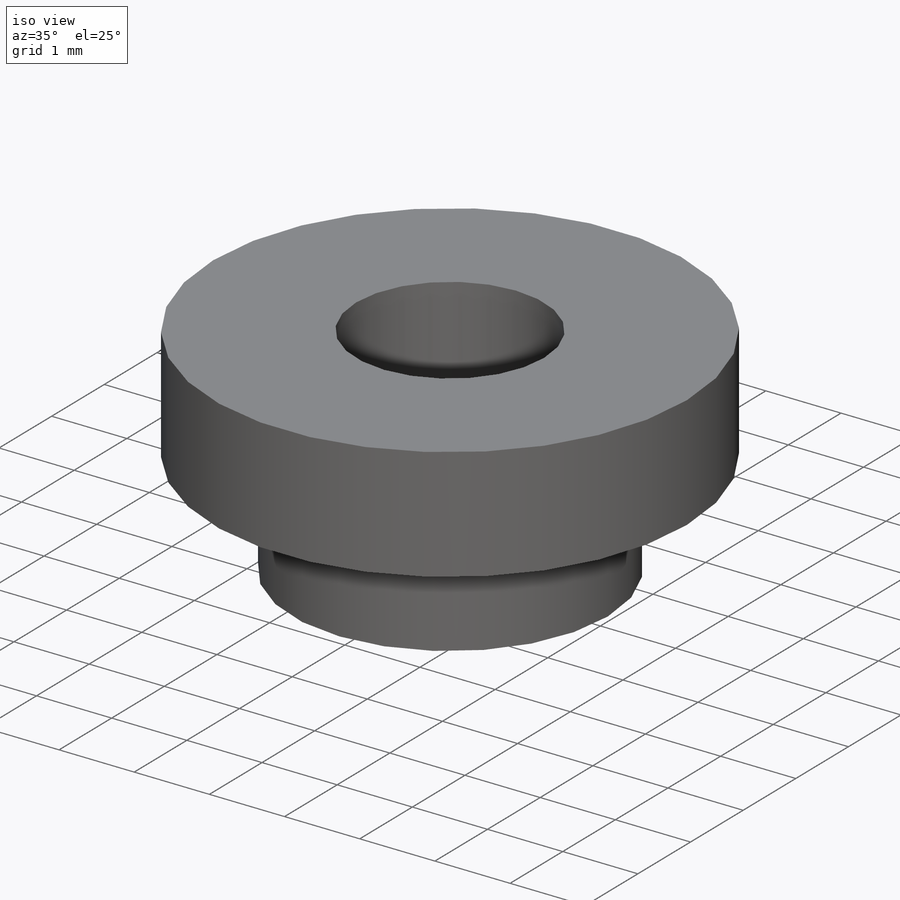
[diagram: iso view]
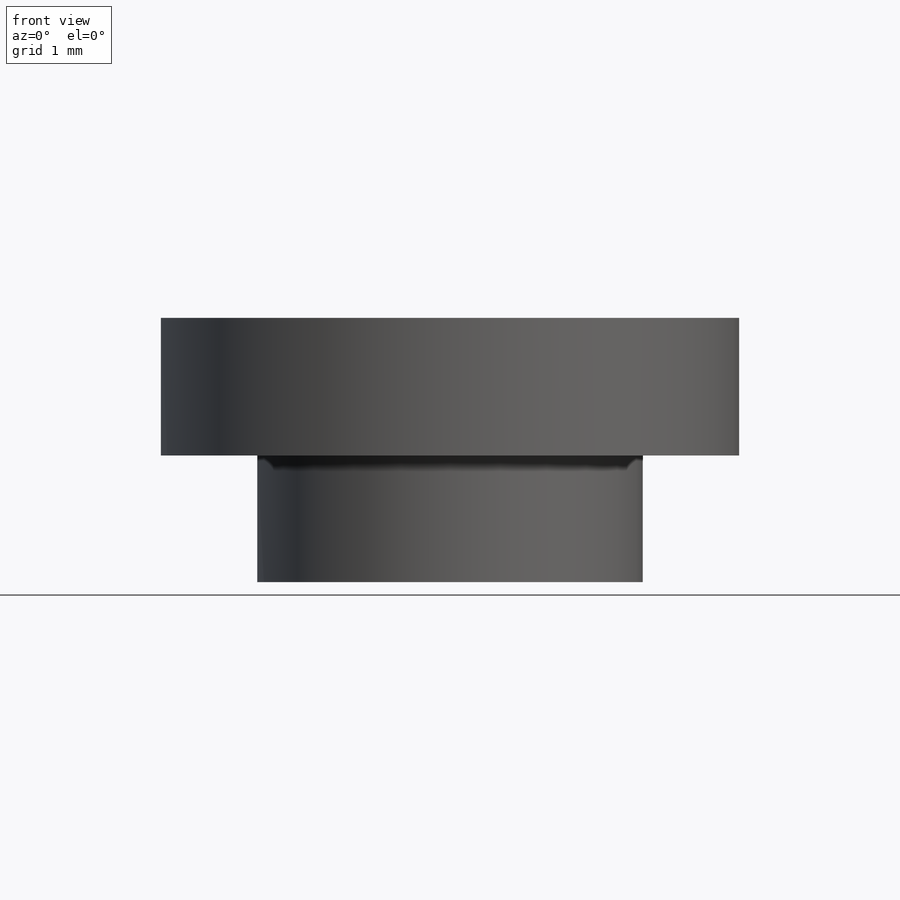
[diagram: front view]
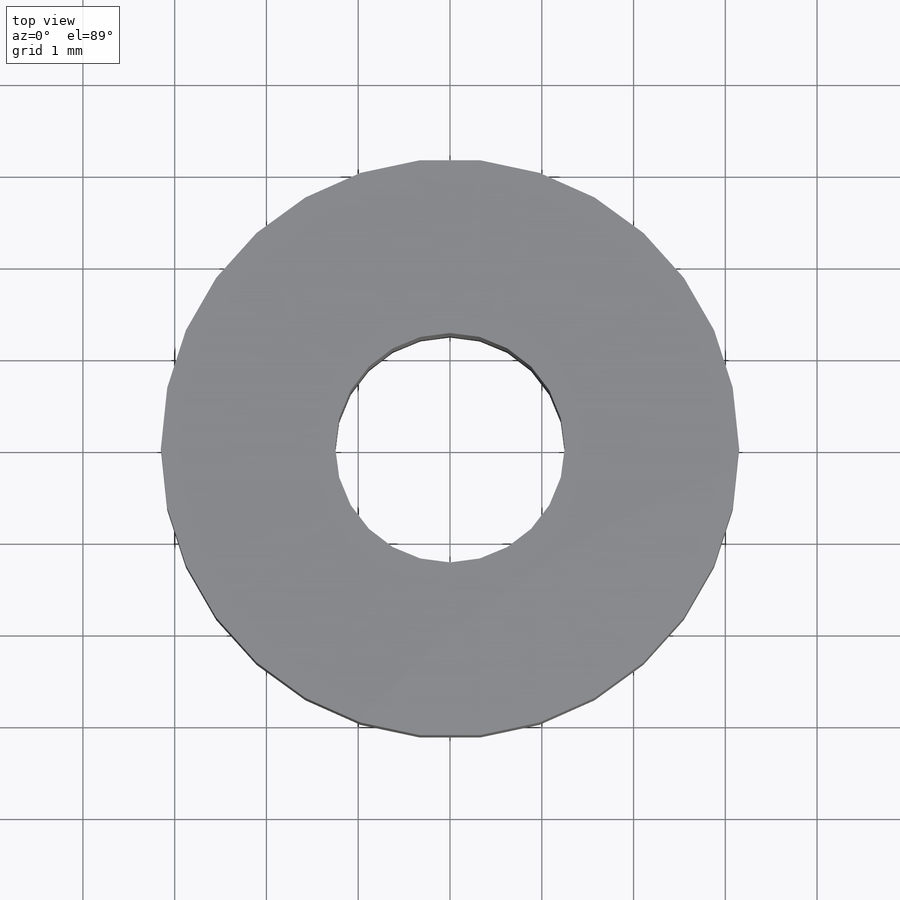
[diagram: top view]
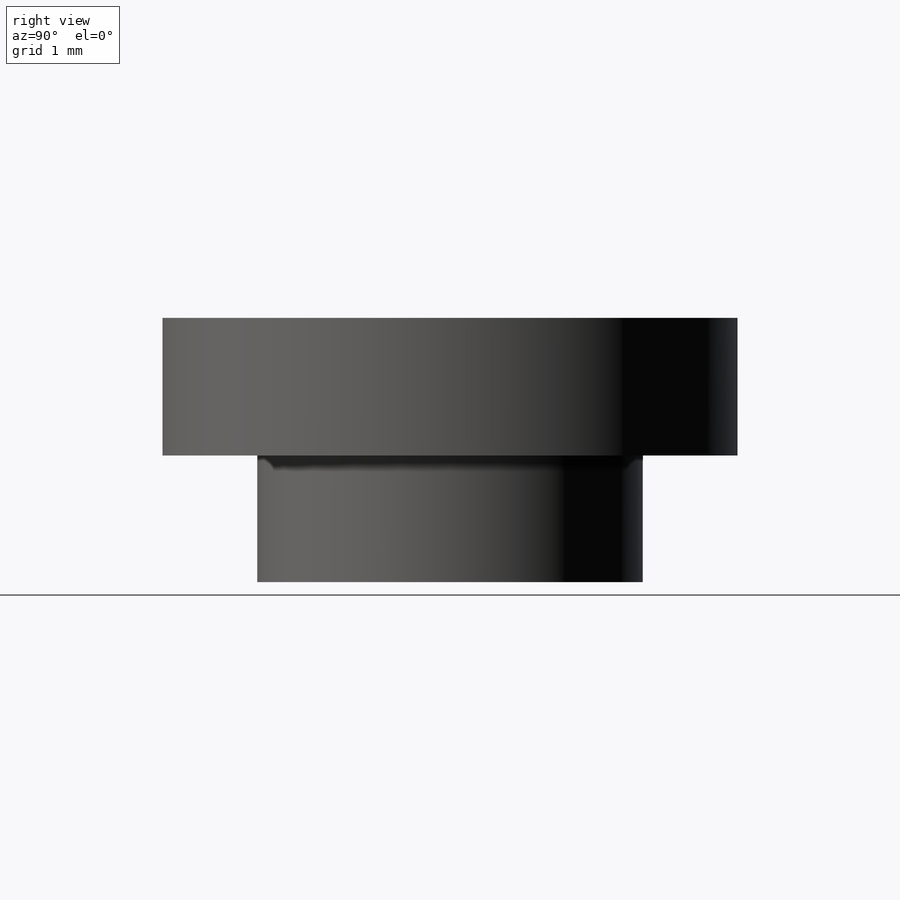
[diagram: right view]
SOLIDWORKS PART (.sldprt)
format: sldprt  version: not decoded by parser v0  size: 200,192 bytes
history: native  units: mm
features: plane x3, sketch x3, material x1, revolve x1, hole x1, thread x1 (+9 scaffold rows collapsed)
feature tree (19):
  scaffold x9  (default folders/planes/origin — collapsed)
  material  "acero"
  plane  "Alzado"
  plane  "Planta"
  plane  "Vista lateral"
  sketch  "Croquis1"  dims[D1=3.15mm D2=1.5mm D3=1.38mm D4=2.1mm]
  revolve  "Revolución1"  Angle=360deg
  hole  "Taladro roscado M31"  Depth=10mm  [1 undecoded]
  sketch  "Croquis3"
  sketch  "Croquis2"  dims[hole-wizard template sketch: 46 standard entries collapsed; hole parameters kept: c15.Diámetro de perforador para roscar=2.5mm c15.Profundidad de perforador para roscar=10.0mm c15.D3=~14.816244mm c15.Ángulo de perforador=118.0deg]
  thread  "Rosca de taladro1"  Diameter=2.47mm  [1 undecoded]
decode coverage: 5 of 6 modeling features carry decoded parameters
note: ~ marks probable driven/reference dimensions
note: 2 parameter values undecoded
note: suppression state not decoded; provenance and decode notes live in map.json
